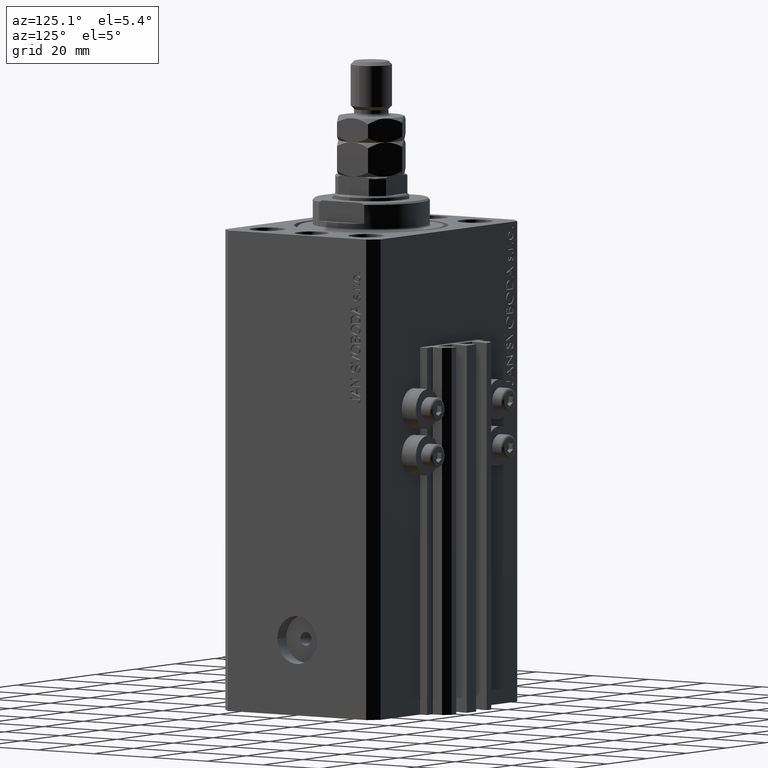
[diagram: clean part render]
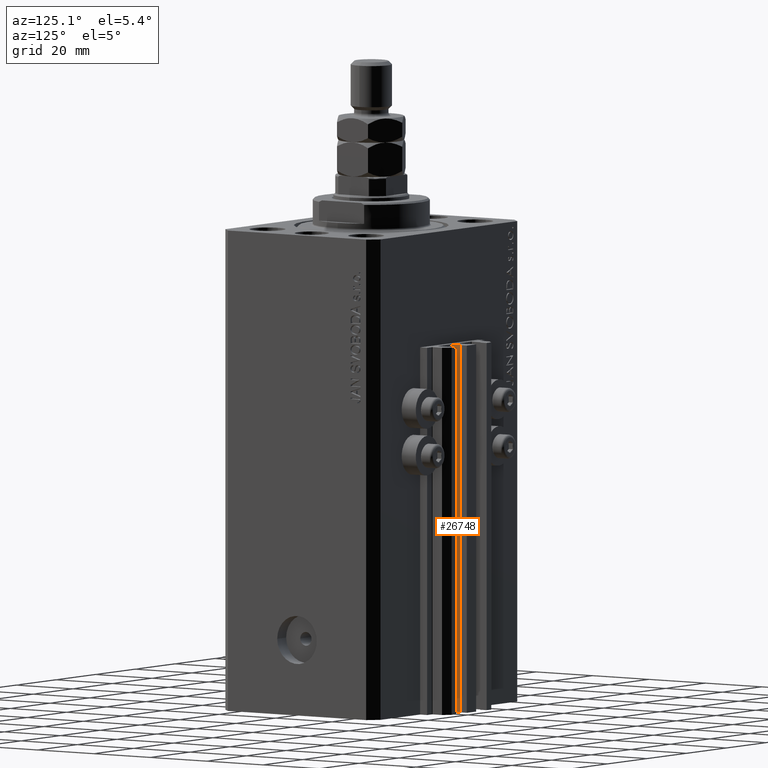
[diagram: same view with one face highlighted and labeled with its STEP entity id]
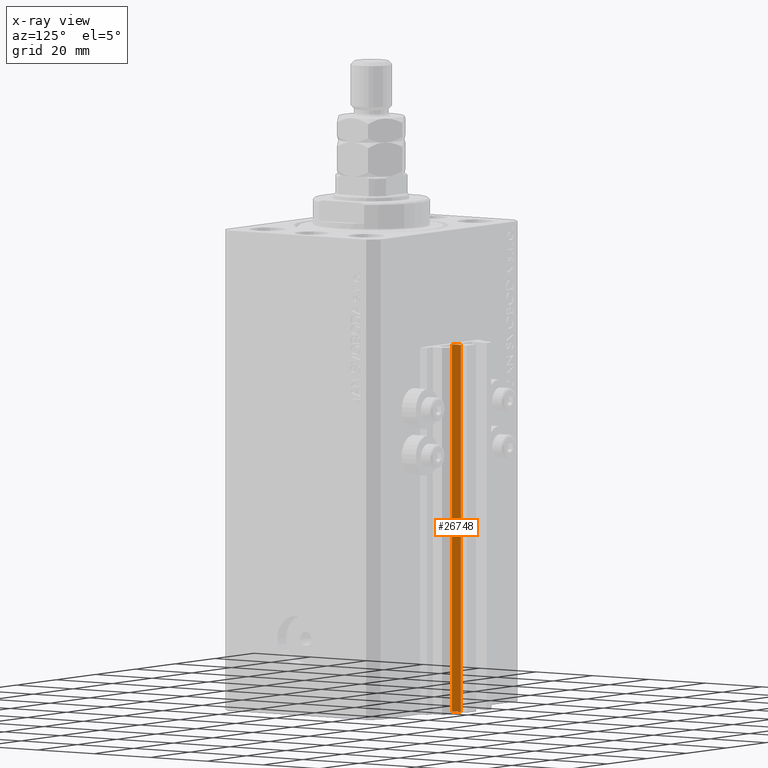
[diagram: x-ray of the same camera — body ghosted, the highlighted face saturated]
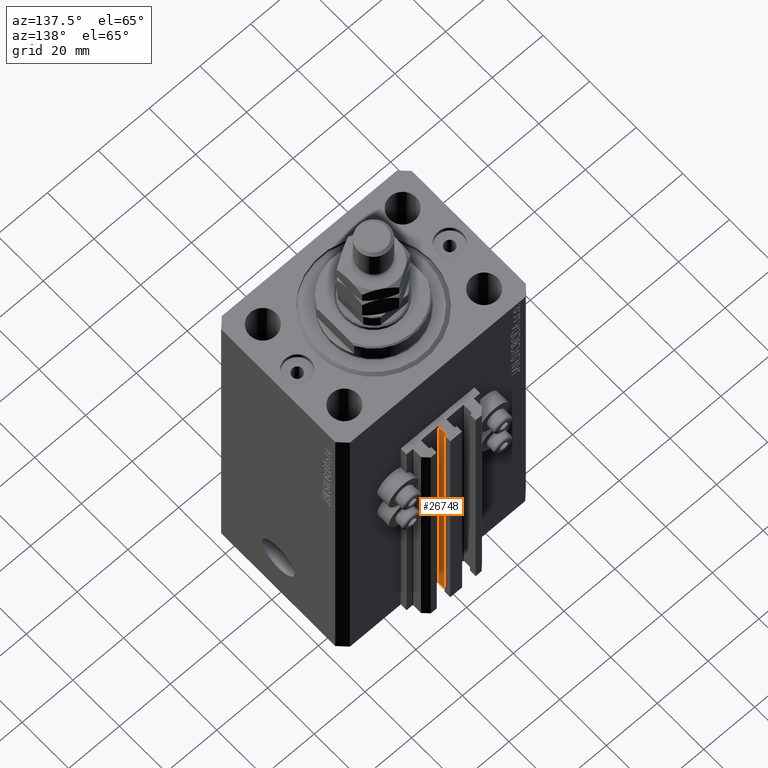
[diagram: same view with one face highlighted and labeled with its STEP entity id]
A machine part, auxiliary view. The second image highlights one B-rep face of the part: STEP entity #26748.
The next image is the same camera in x-ray: the body ghosted, the highlighted face saturated — about 0% of this face is hidden behind the body in this view.
A second angle (auxiliary view) of the same face is appended — the face is thin or edge-on in the first view.
In plain terms, the highlighted planar face has unit normal (1, 0, 0).
Its self-contained STEP definition (entity closure, byte-faithful):
#5427 = DIRECTION ( 'NONE',  ( 0.000000000000000000, 1.000000000000000000, 0.000000000000000000 ) ) ;
#9372 = CARTESIAN_POINT ( 'NONE',  ( 1.600000000000000533, 29.69999999999999929, -33.00000000000000000 ) ) ;
#9613 = DIRECTION ( 'NONE',  ( 0.000000000000000000, 0.000000000000000000, 1.000000000000000000 ) ) ;
#12155 = VECTOR ( 'NONE', #9613, 1000.000000000000000 ) ;
#13591 = EDGE_LOOP ( 'NONE', ( #19867, #32149, #26468, #28724 ) ) ;
#13791 = EDGE_CURVE ( 'NONE', #31481, #21276, #35038, .T. ) ;
#14356 = CARTESIAN_POINT ( 'NONE',  ( 1.599999999999999645, 29.69999999999999929, -33.00000000000000000 ) ) ;
#15158 = LINE ( 'NONE', #29481, #41978 ) ;
#15388 = CARTESIAN_POINT ( 'NONE',  ( 1.600000000000000533, 32.90000000000001279, -33.00000000000000000 ) ) ;
#15484 = AXIS2_PLACEMENT_3D ( 'NONE', #29828, #44881, #25911 ) ;
#17310 = EDGE_CURVE ( 'NONE', #48093, #31481, #39474, .T. ) ;
#18883 = EDGE_CURVE ( 'NONE', #48093, #25425, #37657, .T. ) ;
#19867 = ORIENTED_EDGE ( 'NONE', *, *, #13791, .F. ) ;
#21276 = VERTEX_POINT ( 'NONE', #15388 ) ;
#21469 = CARTESIAN_POINT ( 'NONE',  ( 1.599999999999999645, 29.69999999999999929, -140.0000000000000000 ) ) ;
#25425 = VERTEX_POINT ( 'NONE', #44026 ) ;
#25911 = DIRECTION ( 'NONE',  ( 0.000000000000000000, 0.000000000000000000, -1.000000000000000000 ) ) ;
#26040 = DIRECTION ( 'NONE',  ( 0.000000000000000000, 0.000000000000000000, 1.000000000000000000 ) ) ;
#26468 = ORIENTED_EDGE ( 'NONE', *, *, #18883, .T. ) ;
#26748 = ADVANCED_FACE ( 'NONE', ( #33055 ), #33297, .T. ) ;
#26769 = CARTESIAN_POINT ( 'NONE',  ( 1.599999999999999645, 29.69999999999999929, -140.0000000000000000 ) ) ;
#28724 = ORIENTED_EDGE ( 'NONE', *, *, #47198, .T. ) ;
#29481 = CARTESIAN_POINT ( 'NONE',  ( 1.600000000000000533, 32.90000000000001279, -140.0000000000000000 ) ) ;
#29828 = CARTESIAN_POINT ( 'NONE',  ( 1.600000000000000533, 29.69999999999999929, -140.0000000000000000 ) ) ;
#30957 = VECTOR ( 'NONE', #5427, 1000.000000000000000 ) ;
#31481 = VERTEX_POINT ( 'NONE', #14356 ) ;
#31915 = VECTOR ( 'NONE', #41865, 1000.000000000000000 ) ;
#32149 = ORIENTED_EDGE ( 'NONE', *, *, #17310, .F. ) ;
#33055 = FACE_OUTER_BOUND ( 'NONE', #13591, .T. ) ;
#33297 = PLANE ( 'NONE',  #15484 ) ;
#35038 = LINE ( 'NONE', #9372, #30957 ) ;
#37657 = LINE ( 'NONE', #38885, #31915 ) ;
#38885 = CARTESIAN_POINT ( 'NONE',  ( 1.600000000000000533, 29.69999999999999929, -140.0000000000000000 ) ) ;
#39474 = LINE ( 'NONE', #21469, #12155 ) ;
#41865 = DIRECTION ( 'NONE',  ( 0.000000000000000000, 1.000000000000000000, 0.000000000000000000 ) ) ;
#41978 = VECTOR ( 'NONE', #26040, 1000.000000000000000 ) ;
#44026 = CARTESIAN_POINT ( 'NONE',  ( 1.600000000000000533, 32.90000000000001279, -140.0000000000000000 ) ) ;
#44881 = DIRECTION ( 'NONE',  ( 1.000000000000000000, 0.000000000000000000, 0.000000000000000000 ) ) ;
#47198 = EDGE_CURVE ( 'NONE', #25425, #21276, #15158, .T. ) ;
#48093 = VERTEX_POINT ( 'NONE', #26769 ) ;